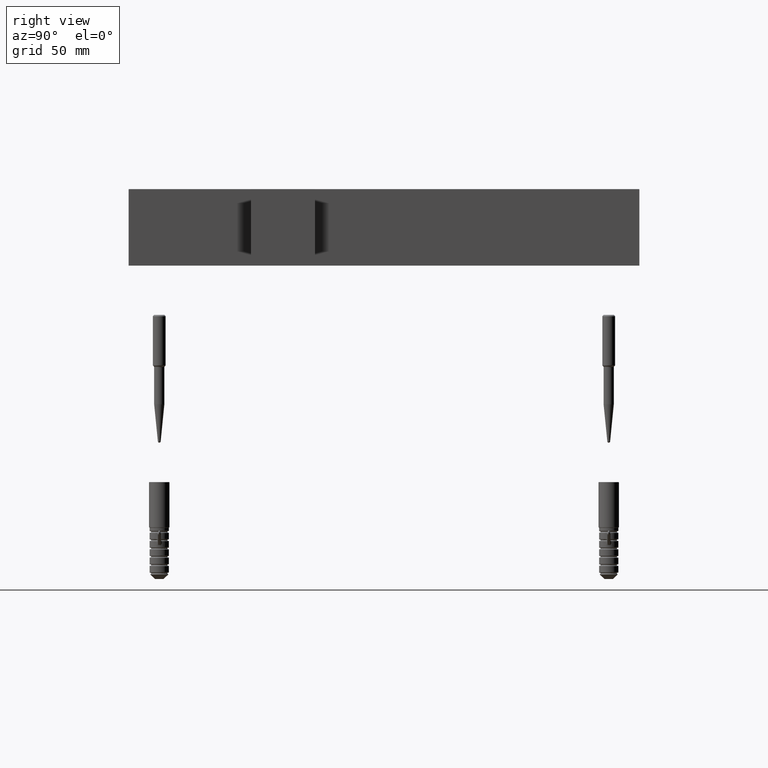
[diagram: clean part render]
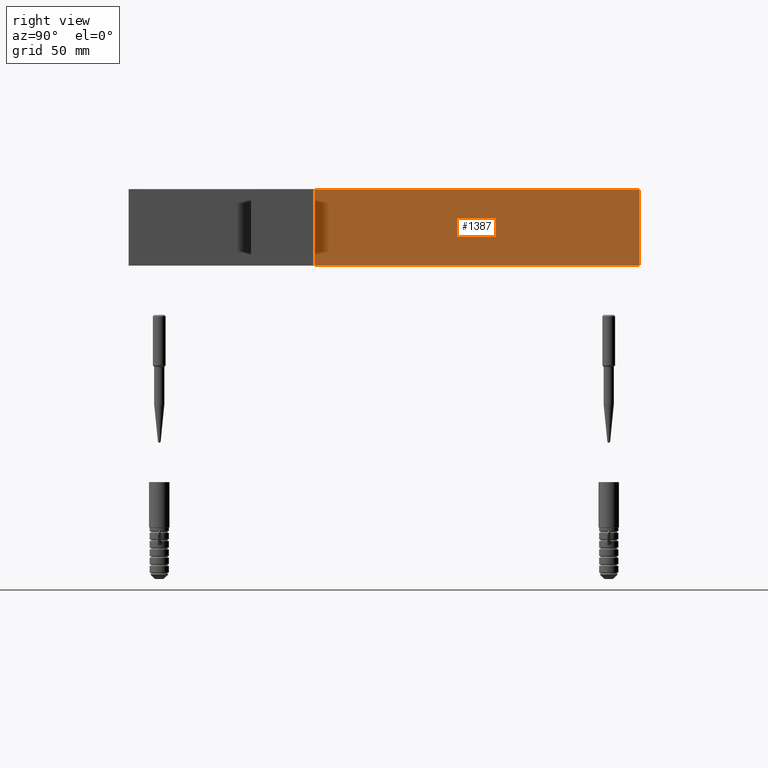
[diagram: same view with one face highlighted and labeled with its STEP entity id]
A machine part, right view. The second image highlights one B-rep face of the part: STEP entity #1387.
In plain terms, the highlighted planar face has unit normal (-1, -0, 0).
Its self-contained STEP definition (entity closure, byte-faithful):
#196 = EDGE_CURVE ( 'NONE', #18722, #6250, #17501, .T. ) ;
#1187 = LINE ( 'NONE', #22438, #5179 ) ;
#1387 = ADVANCED_FACE ( 'NONE', ( #3167 ), #7538, .F. ) ;
#1400 = DIRECTION ( 'NONE',  ( 4.912637638761489500E-016, -1.000000000000000000, 0.0000000000000000000 ) ) ;
#3167 = FACE_OUTER_BOUND ( 'NONE', #8860, .T. ) ;
#3552 = LINE ( 'NONE', #21155, #25445 ) ;
#3841 = CARTESIAN_POINT ( 'NONE',  ( 12.49999999999998000, 72.87878787878742100, 2.000000000000000000 ) ) ;
#4597 = CARTESIAN_POINT ( 'NONE',  ( 12.49999999999998000, 72.87878787878742100, 1.750000000000000000 ) ) ;
#4709 = ORIENTED_EDGE ( 'NONE', *, *, #20848, .T. ) ;
#5179 = VECTOR ( 'NONE', #24655, 1000.000000000000000 ) ;
#5258 = CARTESIAN_POINT ( 'NONE',  ( 12.49999999999991800, 199.9999999999996900, 2.000000000000000000 ) ) ;
#5429 = CARTESIAN_POINT ( 'NONE',  ( 12.49999999999991800, 199.9999999999996900, 1.750000000000000000 ) ) ;
#6250 = VERTEX_POINT ( 'NONE', #24932 ) ;
#7446 = DIRECTION ( 'NONE',  ( 4.912637638761489500E-016, -1.000000000000000000, 0.0000000000000000000 ) ) ;
#7538 = PLANE ( 'NONE',  #21799 ) ;
#8860 = EDGE_LOOP ( 'NONE', ( #14471, #4709, #12357, #11375 ) ) ;
#8884 = CARTESIAN_POINT ( 'NONE',  ( 12.49999999999991800, 199.9999999999996900, -28.00000000000000000 ) ) ;
#10317 = VERTEX_POINT ( 'NONE', #25203 ) ;
#11375 = ORIENTED_EDGE ( 'NONE', *, *, #18598, .F. ) ;
#11482 = VECTOR ( 'NONE', #18554, 1000.000000000000000 ) ;
#12357 = ORIENTED_EDGE ( 'NONE', *, *, #196, .T. ) ;
#13765 = DIRECTION ( 'NONE',  ( -1.000000000000000000, -4.912637638761489500E-016, 0.0000000000000000000 ) ) ;
#14377 = VERTEX_POINT ( 'NONE', #8884 ) ;
#14471 = ORIENTED_EDGE ( 'NONE', *, *, #26246, .F. ) ;
#17501 = LINE ( 'NONE', #3841, #11482 ) ;
#18554 = DIRECTION ( 'NONE',  ( -0.0000000000000000000, -0.0000000000000000000, -1.000000000000000000 ) ) ;
#18598 = EDGE_CURVE ( 'NONE', #14377, #6250, #3552, .T. ) ;
#18722 = VERTEX_POINT ( 'NONE', #4597 ) ;
#20848 = EDGE_CURVE ( 'NONE', #10317, #18722, #26176, .T. ) ;
#21155 = CARTESIAN_POINT ( 'NONE',  ( 12.50000000000001600, 6.140797048451869600E-015, -28.00000000000000000 ) ) ;
#21799 = AXIS2_PLACEMENT_3D ( 'NONE', #5258, #13765, #7446 ) ;
#22279 = DIRECTION ( 'NONE',  ( 4.912637638761489500E-016, -1.000000000000000000, -0.0000000000000000000 ) ) ;
#22438 = CARTESIAN_POINT ( 'NONE',  ( 12.49999999999991800, 199.9999999999996900, 2.000000000000000000 ) ) ;
#22488 = VECTOR ( 'NONE', #22279, 1000.000000000000000 ) ;
#24655 = DIRECTION ( 'NONE',  ( -0.0000000000000000000, -0.0000000000000000000, -1.000000000000000000 ) ) ;
#24932 = CARTESIAN_POINT ( 'NONE',  ( 12.49999999999998000, 72.87878787878742100, -28.00000000000000000 ) ) ;
#25203 = CARTESIAN_POINT ( 'NONE',  ( 12.49999999999991800, 199.9999999999996900, 1.750000000000000000 ) ) ;
#25445 = VECTOR ( 'NONE', #1400, 1000.000000000000000 ) ;
#26176 = LINE ( 'NONE', #5429, #22488 ) ;
#26246 = EDGE_CURVE ( 'NONE', #10317, #14377, #1187, .T. ) ;